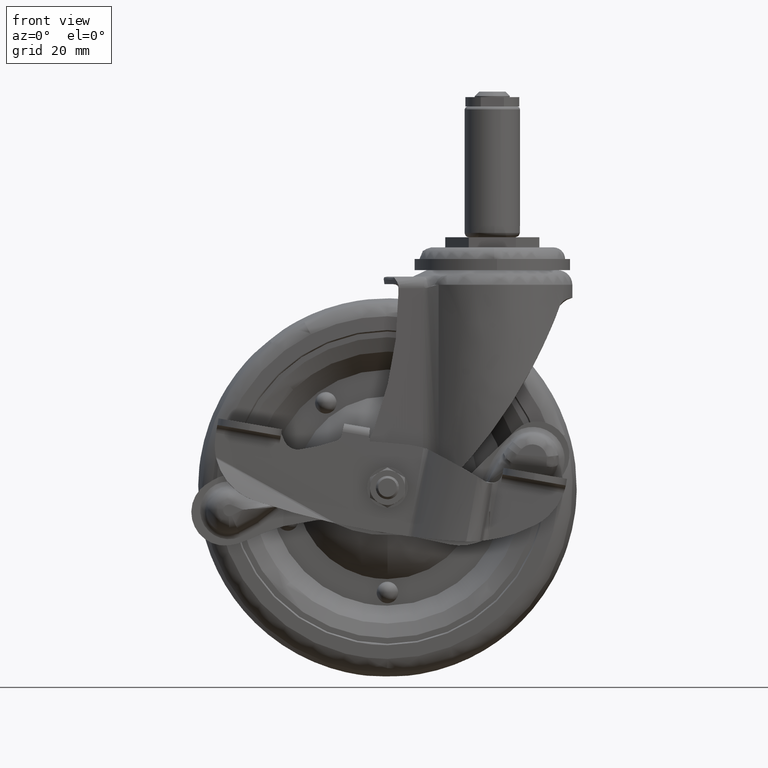
[diagram: clean part render]
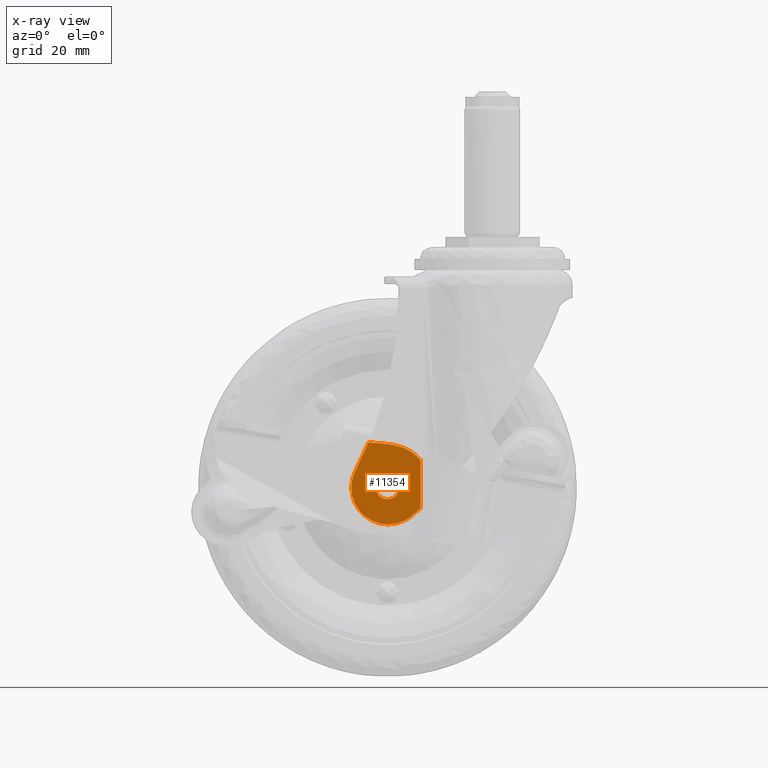
[diagram: x-ray — body ghosted, one internal face saturated and labeled with its STEP entity id]
A machine part, front view, then the same camera in x-ray: the body is ghosted and one INTERNAL B-rep face — a face not visible from any outside direction — is saturated and labeled: STEP entity #11354.
In plain terms, the highlighted face is a freeform B-spline surface patch.
Its self-contained STEP definition (entity closure, byte-faithful):
#8239=CARTESIAN_POINT('',(-32.839201680255293,-18.832347698603812,-87.457919848550063));
#8240=VERTEX_POINT('',#8239);
#8241=CARTESIAN_POINT('',(-31.995999999999999,-18.831501847097691,-85.0));
#8242=VERTEX_POINT('',#8241);
#8243=CARTESIAN_POINT('',(-32.839201680255286,-18.832347698603808,-87.457919848550063));
#8244=CARTESIAN_POINT('',(-31.996000000000006,-18.831501847097694,-86.373592198195468));
#8245=CARTESIAN_POINT('',(-31.995999999999999,-18.831501847097691,-85.0));
#8253=(BOUNDED_CURVE()B_SPLINE_CURVE(2,(#8243,#8244,#8245),.UNSPECIFIED.,.F.,.U.)B_SPLINE_CURVE_WITH_KNOTS((3,3),(0.393802236627943,0.500000000000000),.UNSPECIFIED.)CURVE()GEOMETRIC_REPRESENTATION_ITEM()RATIONAL_B_SPLINE_CURVE((0.856866824584485,0.875581581020675,1.0))REPRESENTATION_ITEM(''));
#8254=EDGE_CURVE('',#8240,#8242,#8253,.T.);
#8256=CARTESIAN_POINT('',(-40.003999999999991,-18.839534818595009,-85.0));
#8257=VERTEX_POINT('',#8256);
#8258=CARTESIAN_POINT('',(-31.995999999999999,-18.831501847097691,-85.0));
#8259=CARTESIAN_POINT('',(-31.995999999999999,-18.831501847097698,-80.996000000000009));
#8260=CARTESIAN_POINT('',(-36.0,-18.835518332846348,-80.996000000000009));
#8261=CARTESIAN_POINT('',(-40.003999999999984,-18.839534818595013,-80.996000000000009));
#8262=CARTESIAN_POINT('',(-40.003999999999991,-18.839534818595009,-85.0));
#8270=(BOUNDED_CURVE()B_SPLINE_CURVE(2,(#8258,#8259,#8260,#8261,#8262),.UNSPECIFIED.,.F.,.U.)B_SPLINE_CURVE_WITH_KNOTS((3,2,3),(0.500000000000000,0.750000000000000,1.0),.UNSPECIFIED.)CURVE()GEOMETRIC_REPRESENTATION_ITEM()RATIONAL_B_SPLINE_CURVE((1.0,0.707106781186547,1.0,0.707106781186547,1.0))REPRESENTATION_ITEM(''));
#8271=EDGE_CURVE('',#8242,#8257,#8270,.T.);
#8273=CARTESIAN_POINT('',(-38.806440695276017,-18.838333525000191,-87.855854797411553));
#8274=VERTEX_POINT('',#8273);
#8275=CARTESIAN_POINT('',(-40.003999999999991,-18.839534818595009,-85.0));
#8276=CARTESIAN_POINT('',(-40.003999999999984,-18.839534818595006,-86.679016544559985));
#8277=CARTESIAN_POINT('',(-38.806440695276024,-18.838333525000188,-87.855854797411553));
#8285=(BOUNDED_CURVE()B_SPLINE_CURVE(2,(#8275,#8276,#8277),.UNSPECIFIED.,.F.,.U.)B_SPLINE_CURVE_WITH_KNOTS((3,3),(0.0,0.126316757483367),.UNSPECIFIED.)CURVE()GEOMETRIC_REPRESENTATION_ITEM()RATIONAL_B_SPLINE_CURVE((1.0,0.852010713242473,0.853569641248842))REPRESENTATION_ITEM(''));
#8286=EDGE_CURVE('',#8257,#8274,#8285,.T.);
#8355=CARTESIAN_POINT('',(-38.806440695276024,-18.838333525000188,-87.855854797411553));
#8356=CARTESIAN_POINT('',(-37.638079650585034,-18.837161520551582,-89.004000000000005));
#8357=CARTESIAN_POINT('',(-36.0,-18.835518332846348,-89.004000000000005));
#8358=CARTESIAN_POINT('',(-34.041474241583522,-18.833553699780161,-89.004000000000005));
#8359=CARTESIAN_POINT('',(-32.839201680255286,-18.832347698603808,-87.457919848550063));
#8367=(BOUNDED_CURVE()B_SPLINE_CURVE(2,(#8355,#8356,#8357,#8358,#8359),.UNSPECIFIED.,.F.,.U.)B_SPLINE_CURVE_WITH_KNOTS((3,2,3),(0.126316757483367,0.250000000000000,0.393802236627943),.UNSPECIFIED.)CURVE()GEOMETRIC_REPRESENTATION_ITEM()RATIONAL_B_SPLINE_CURVE((0.853569641248842,0.855096067944074,1.0,0.831525200165872,0.856866824584485))REPRESENTATION_ITEM(''));
#8368=EDGE_CURVE('',#8274,#8240,#8367,.T.);
#9752=CARTESIAN_POINT('',(-42.492094097398301,-18.842030671363052,-69.475006423940400));
#9753=VERTEX_POINT('',#9752);
#9797=CARTESIAN_POINT('',(-47.016518556844403,-18.846569204420600,-79.180543796200894));
#9798=VERTEX_POINT('',#9797);
#9814=CARTESIAN_POINT('',(-42.492094097398251,-18.842030671363052,-69.475006423940499));
#9815=CARTESIAN_POINT('',(-44.557622392990737,-18.844102640634446,-74.419463142803977));
#9816=CARTESIAN_POINT('',(-47.016518556844403,-18.846569204420600,-79.180543796200894));
#9824=(BOUNDED_CURVE()B_SPLINE_CURVE(2,(#9814,#9815,#9816),.UNSPECIFIED.,.F.,.U.)CURVE()GEOMETRIC_REPRESENTATION_ITEM()QUASI_UNIFORM_CURVE()RATIONAL_B_SPLINE_CURVE((1.0,0.999179659909668,1.0))REPRESENTATION_ITEM(''));
#9825=EDGE_CURVE('',#9753,#9798,#9824,.T.);
#9894=CARTESIAN_POINT('',(-27.607181604608250,-18.827099342967148,-94.723860613115306));
#9895=VERTEX_POINT('',#9894);
#9909=CARTESIAN_POINT('',(-47.016518556844403,-18.846569204420440,-79.180543796200809));
#9910=CARTESIAN_POINT('',(-51.781903337264247,-18.851349449190018,-88.407603338427862));
#9911=CARTESIAN_POINT('',(-43.675836756523793,-18.843218105309099,-94.899075012082676));
#9912=CARTESIAN_POINT('',(-35.569770175783333,-18.835086761428197,-101.390546685737500));
#9913=CARTESIAN_POINT('',(-27.607181604608250,-18.827099342967148,-94.723860613115306));
#9921=(BOUNDED_CURVE()B_SPLINE_CURVE(2,(#9909,#9910,#9911,#9912,#9913),.UNSPECIFIED.,.F.,.U.)B_SPLINE_CURVE_WITH_KNOTS((3,2,3),(0.0,0.500000000000000,1.0),.UNSPECIFIED.)CURVE()GEOMETRIC_REPRESENTATION_ITEM()RATIONAL_B_SPLINE_CURVE((1.0,0.773695856184891,1.0,0.773695856184891,1.0))REPRESENTATION_ITEM(''));
#9922=EDGE_CURVE('',#9798,#9895,#9921,.T.);
#9965=CARTESIAN_POINT('',(-24.592246909805450,-18.824075006744700,-92.139764982026307));
#9966=VERTEX_POINT('',#9965);
#9980=CARTESIAN_POINT('',(-27.607181604608439,-18.827099342967060,-94.723860613115363));
#9981=CARTESIAN_POINT('',(-26.084784397692633,-18.825572198440245,-93.449231870959082));
#9982=CARTESIAN_POINT('',(-24.592246909805620,-18.824075006744589,-92.139764982026335));
#9990=(BOUNDED_CURVE()B_SPLINE_CURVE(2,(#9980,#9981,#9982),.UNSPECIFIED.,.F.,.U.)CURVE()GEOMETRIC_REPRESENTATION_ITEM()QUASI_UNIFORM_CURVE()RATIONAL_B_SPLINE_CURVE((1.0,0.999933245461188,1.0))REPRESENTATION_ITEM(''));
#9991=EDGE_CURVE('',#9895,#9966,#9990,.T.);
#11262=CARTESIAN_POINT('',(-24.592246909805450,-18.824075006744749,-75.651007956320996));
#11263=VERTEX_POINT('',#11262);
#11264=CARTESIAN_POINT('',(-24.592246909805450,-18.824075006744700,-92.139764982026307));
#11265=CARTESIAN_POINT('',(-24.592246909805450,-18.824075006744749,-75.651007956320996));
#11266=QUASI_UNIFORM_CURVE('',1,(#11264,#11265),.UNSPECIFIED.,.F.,.U.);
#11267=EDGE_CURVE('',#9966,#11263,#11266,.T.);
#11302=CARTESIAN_POINT('',(-49.618789720438173,-18.849179590295389,-99.082912060220764));
#11303=CARTESIAN_POINT('',(-23.401641225901201,-18.822880688372649,-99.082912060220764));
#11304=CARTESIAN_POINT('',(-49.618789720438173,-18.849179590295389,-68.066448277167339));
#11305=CARTESIAN_POINT('',(-23.401641225901201,-18.822880688372649,-68.066448277167339));
#11306=B_SPLINE_SURFACE_WITH_KNOTS('',1,1,((#11302,#11304),(#11303,#11305)),.UNSPECIFIED.,.F.,.F.,.U.,(2,2),(2,2),(0.0,26.217161684988799),(0.0,31.016463783053432),.UNSPECIFIED.);
#11307=CARTESIAN_POINT('',(-37.427031639845012,-18.836949814425850,-69.913640465588699));
#11308=VERTEX_POINT('',#11307);
#11309=CARTESIAN_POINT('',(-42.492094097398308,-18.842030671363069,-69.475006423940428));
#11310=CARTESIAN_POINT('',(-39.948398309819247,-18.839479043520978,-69.565402334509301));
#11311=CARTESIAN_POINT('',(-37.427031639844998,-18.836949814425800,-69.913640465588699));
#11319=(BOUNDED_CURVE()B_SPLINE_CURVE(2,(#11309,#11310,#11311),.UNSPECIFIED.,.F.,.U.)CURVE()GEOMETRIC_REPRESENTATION_ITEM()QUASI_UNIFORM_CURVE()RATIONAL_B_SPLINE_CURVE((1.0,0.998706800942031,1.0))REPRESENTATION_ITEM(''));
#11320=EDGE_CURVE('',#9753,#11308,#11319,.T.);
#11321=ORIENTED_EDGE('',*,*,#11320,.F.);
#11322=ORIENTED_EDGE('',*,*,#9825,.T.);
#11323=ORIENTED_EDGE('',*,*,#9922,.T.);
#11324=ORIENTED_EDGE('',*,*,#9991,.T.);
#11325=ORIENTED_EDGE('',*,*,#11267,.T.);
#11326=CARTESIAN_POINT('',(-33.982065174272499,-18.833494105456300,-70.389441426190103));
#11327=VERTEX_POINT('',#11326);
#11328=CARTESIAN_POINT('',(-33.982065174272499,-18.833494105456300,-70.389441426190103));
#11329=CARTESIAN_POINT('',(-28.256144352940812,-18.827750329388298,-71.180276011764207));
#11330=CARTESIAN_POINT('',(-24.592246909805450,-18.824075006744721,-75.651007956321052));
#11338=(BOUNDED_CURVE()B_SPLINE_CURVE(2,(#11328,#11329,#11330),.UNSPECIFIED.,.F.,.U.)CURVE()GEOMETRIC_REPRESENTATION_ITEM()QUASI_UNIFORM_CURVE()RATIONAL_B_SPLINE_CURVE((1.0,0.931053531319780,1.0))REPRESENTATION_ITEM(''));
#11339=EDGE_CURVE('',#11327,#11263,#11338,.T.);
#11340=ORIENTED_EDGE('',*,*,#11339,.F.);
#11341=CARTESIAN_POINT('',(-37.427031639845012,-18.836949814425850,-69.913640465588699));
#11342=CARTESIAN_POINT('',(-33.982065174272499,-18.833494105456300,-70.389441426190103));
#11343=QUASI_UNIFORM_CURVE('',1,(#11341,#11342),.UNSPECIFIED.,.F.,.U.);
#11344=EDGE_CURVE('',#11308,#11327,#11343,.T.);
#11345=ORIENTED_EDGE('',*,*,#11344,.F.);
#11346=EDGE_LOOP('',(#11321,#11322,#11323,#11324,#11325,#11340,#11345));
#11347=FACE_OUTER_BOUND('',#11346,.T.);
#11348=ORIENTED_EDGE('',*,*,#8271,.F.);
#11349=ORIENTED_EDGE('',*,*,#8254,.F.);
#11350=ORIENTED_EDGE('',*,*,#8368,.F.);
#11351=ORIENTED_EDGE('',*,*,#8286,.F.);
#11352=EDGE_LOOP('',(#11348,#11349,#11350,#11351));
#11353=FACE_BOUND('',#11352,.T.);
#11354=ADVANCED_FACE('',(#11347,#11353),#11306,.T.);